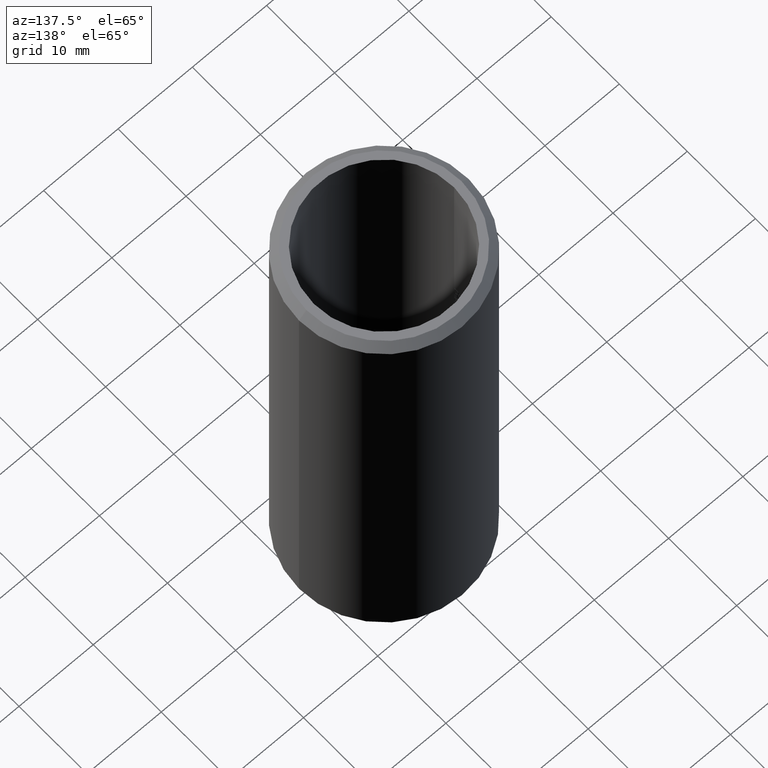
[diagram: clean part render]
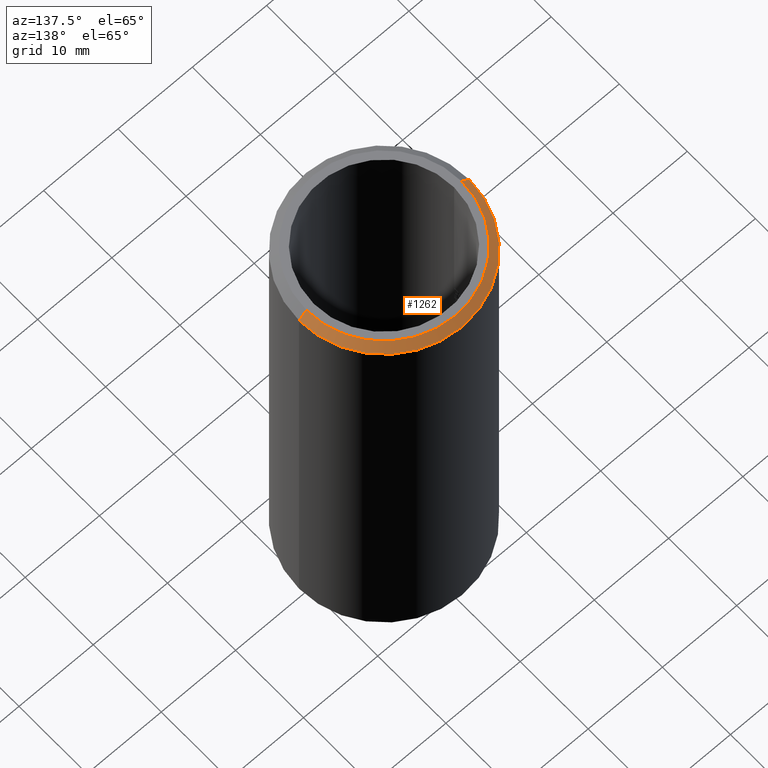
[diagram: same view with one face highlighted and labeled with its STEP entity id]
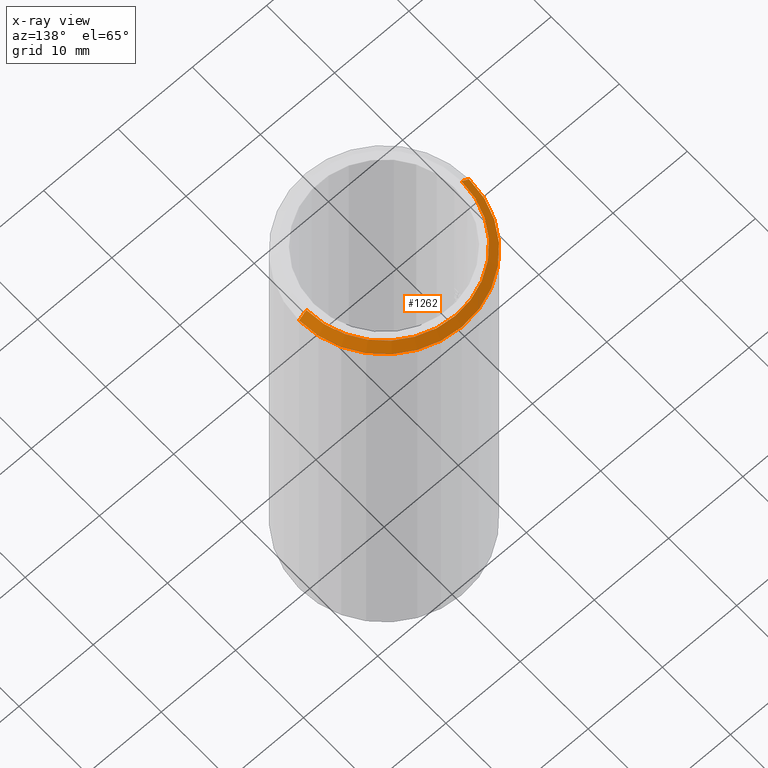
[diagram: x-ray of the same camera — body ghosted, the highlighted face saturated]
A machine part, auxiliary view. The second image highlights one B-rep face of the part: STEP entity #1262.
The next image is the same camera in x-ray: the body ghosted, the highlighted face saturated — about 0% of this face is hidden behind the body in this view.
In plain terms, the highlighted conical surface has half-angle 45 deg.
Its self-contained STEP definition (entity closure, byte-faithful):
#6 = DIRECTION ( 'NONE',  ( 1.000000000000000000, 0.0000000000000000000, 0.0000000000000000000 ) ) ;
#331 = CARTESIAN_POINT ( 'NONE',  ( 10.45000000000000600, 1.279755905108984900E-015, 32.50000000000000000 ) ) ;
#649 = CARTESIAN_POINT ( 'NONE',  ( 0.0000000000000000000, 0.0000000000000000000, 32.50000000000000000 ) ) ;
#799 = CARTESIAN_POINT ( 'NONE',  ( 0.0000000000000000000, 0.0000000000000000000, 32.50000000000000000 ) ) ;
#812 = AXIS2_PLACEMENT_3D ( 'NONE', #799, #12246, #7450 ) ;
#1262 = ADVANCED_FACE ( 'NONE', ( #3880 ), #2496, .T. ) ;
#1465 = CIRCLE ( 'NONE', #11936, 10.45000000000000600 ) ;
#2491 = CARTESIAN_POINT ( 'NONE',  ( -10.45000000000000600, 0.0000000000000000000, 32.50000000000000000 ) ) ;
#2496 = CONICAL_SURFACE ( 'NONE', #812, 10.45000000000000600, 0.7853981633974491700 ) ;
#3391 = VERTEX_POINT ( 'NONE', #7665 ) ;
#3551 = CARTESIAN_POINT ( 'NONE',  ( 11.45000000000000100, 1.402220585023719700E-015, 31.50000000000000700 ) ) ;
#3591 = LINE ( 'NONE', #331, #6618 ) ;
#3880 = FACE_OUTER_BOUND ( 'NONE', #8942, .T. ) ;
#4527 = DIRECTION ( 'NONE',  ( 0.0000000000000000000, 0.0000000000000000000, 1.000000000000000000 ) ) ;
#4609 = ORIENTED_EDGE ( 'NONE', *, *, #9928, .F. ) ;
#4704 = CIRCLE ( 'NONE', #6243, 11.45000000000000100 ) ;
#5316 = ORIENTED_EDGE ( 'NONE', *, *, #10267, .F. ) ;
#6174 = ORIENTED_EDGE ( 'NONE', *, *, #6892, .T. ) ;
#6243 = AXIS2_PLACEMENT_3D ( 'NONE', #12432, #11522, #6 ) ;
#6495 = VECTOR ( 'NONE', #8626, 999.9999999999998900 ) ;
#6618 = VECTOR ( 'NONE', #10011, 999.9999999999998900 ) ;
#6736 = CARTESIAN_POINT ( 'NONE',  ( -10.45000000000000600, 0.0000000000000000000, 32.50000000000000000 ) ) ;
#6892 = EDGE_CURVE ( 'NONE', #11182, #10653, #3591, .T. ) ;
#7450 = DIRECTION ( 'NONE',  ( -1.000000000000000000, 0.0000000000000000000, 0.0000000000000000000 ) ) ;
#7564 = LINE ( 'NONE', #6736, #6495 ) ;
#7665 = CARTESIAN_POINT ( 'NONE',  ( -11.45000000000000100, 0.0000000000000000000, 31.50000000000000700 ) ) ;
#8626 = DIRECTION ( 'NONE',  ( -0.7071067811865482400, 0.0000000000000000000, -0.7071067811865469100 ) ) ;
#8942 = EDGE_LOOP ( 'NONE', ( #11943, #6174, #5316, #4609 ) ) ;
#9928 = EDGE_CURVE ( 'NONE', #10076, #3391, #7564, .T. ) ;
#10011 = DIRECTION ( 'NONE',  ( 0.7071067811865482400, 8.659560562354941500E-017, -0.7071067811865469100 ) ) ;
#10076 = VERTEX_POINT ( 'NONE', #2491 ) ;
#10267 = EDGE_CURVE ( 'NONE', #3391, #10653, #4704, .T. ) ;
#10653 = VERTEX_POINT ( 'NONE', #3551 ) ;
#11182 = VERTEX_POINT ( 'NONE', #12218 ) ;
#11270 = EDGE_CURVE ( 'NONE', #11182, #10076, #1465, .T. ) ;
#11522 = DIRECTION ( 'NONE',  ( 0.0000000000000000000, 0.0000000000000000000, -1.000000000000000000 ) ) ;
#11936 = AXIS2_PLACEMENT_3D ( 'NONE', #649, #4527, #12173 ) ;
#11943 = ORIENTED_EDGE ( 'NONE', *, *, #11270, .F. ) ;
#12173 = DIRECTION ( 'NONE',  ( 1.000000000000000000, 0.0000000000000000000, 0.0000000000000000000 ) ) ;
#12218 = CARTESIAN_POINT ( 'NONE',  ( 10.45000000000000600, 1.340988245066352100E-015, 32.50000000000000000 ) ) ;
#12246 = DIRECTION ( 'NONE',  ( 0.0000000000000000000, 0.0000000000000000000, -1.000000000000000000 ) ) ;
#12432 = CARTESIAN_POINT ( 'NONE',  ( 0.0000000000000000000, 0.0000000000000000000, 31.50000000000000700 ) ) ;